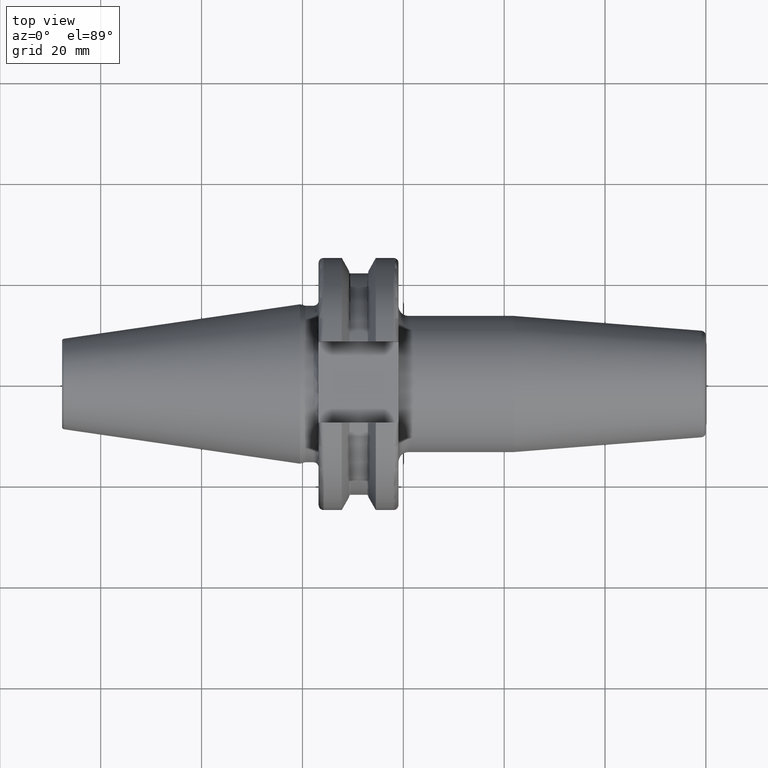
[diagram: clean part render]
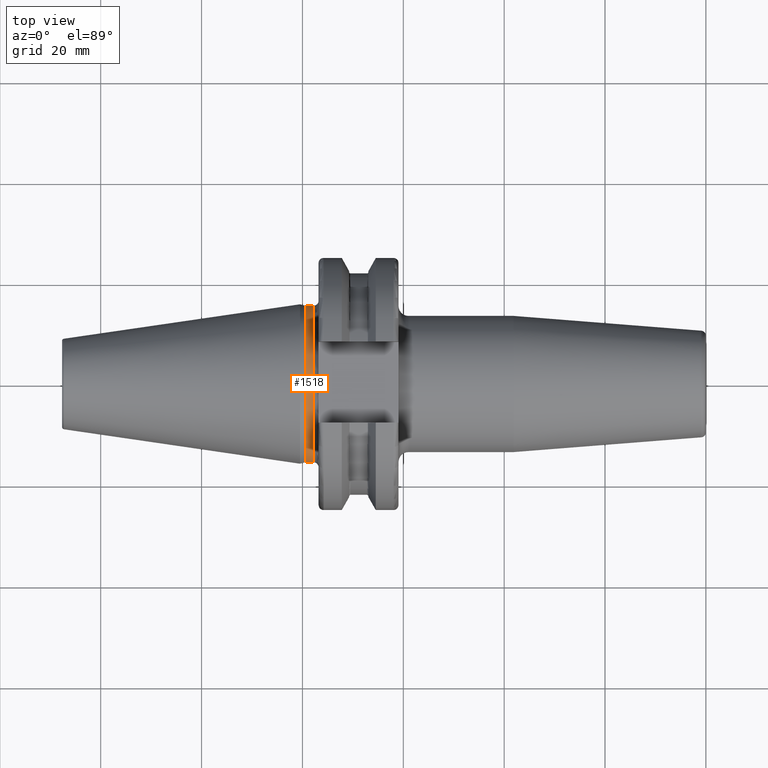
[diagram: same view with one face highlighted and labeled with its STEP entity id]
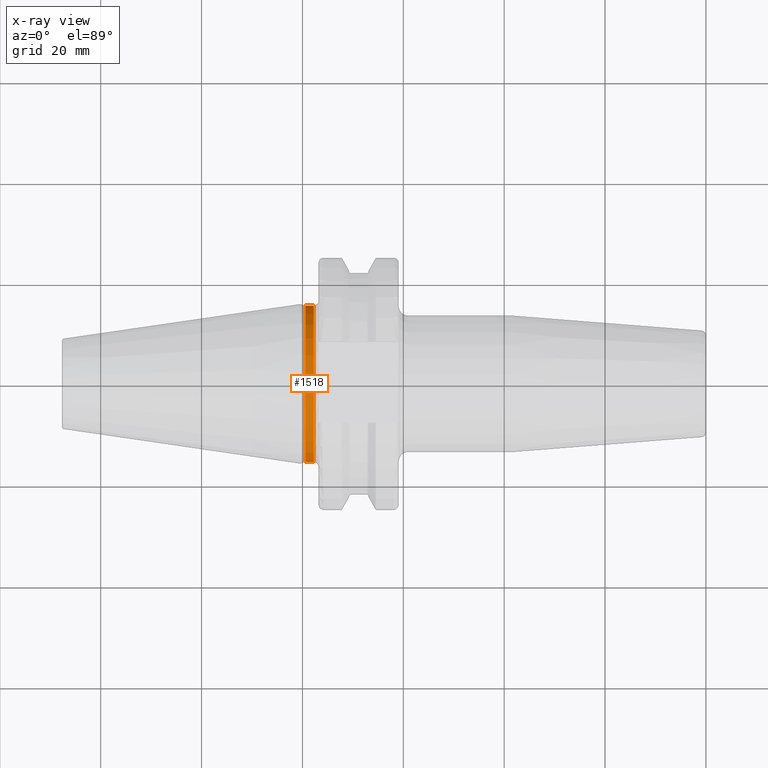
[diagram: x-ray of the same camera — body ghosted, the highlighted face saturated]
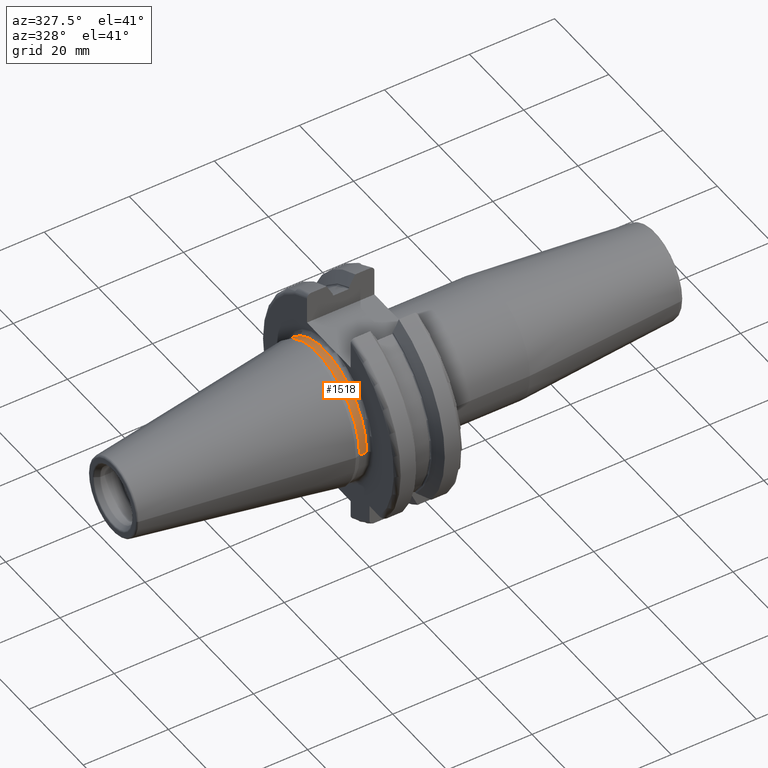
[diagram: same view with one face highlighted and labeled with its STEP entity id]
A machine part, top view. The second image highlights one B-rep face of the part: STEP entity #1518.
The next image is the same camera in x-ray: the body ghosted, the highlighted face saturated — about 0% of this face is hidden behind the body in this view.
A second angle (auxiliary view) of the same face is appended — the face is thin or edge-on in the first view.
In plain terms, the highlighted cylindrical surface (partial cylindrical patch) has radius 15.525 mm, axis along (1, 0, 0).
Its self-contained STEP definition (entity closure, byte-faithful):
#73=CARTESIAN_POINT('',(5.5E-1,0.E0,0.E0));
#74=DIRECTION('',(1.E0,0.E0,0.E0));
#75=DIRECTION('',(0.E0,1.E0,0.E0));
#76=AXIS2_PLACEMENT_3D('',#73,#74,#75);
#78=CARTESIAN_POINT('',(2.2E0,0.E0,0.E0));
#79=DIRECTION('',(1.E0,0.E0,0.E0));
#80=DIRECTION('',(0.E0,1.E0,0.E0));
#81=AXIS2_PLACEMENT_3D('',#78,#79,#80);
#83=DIRECTION('',(-1.E0,0.E0,0.E0));
#84=VECTOR('',#83,1.65E0);
#85=CARTESIAN_POINT('',(2.2E0,1.5525E1,0.E0));
#86=LINE('',#85,#84);
#87=DIRECTION('',(-1.E0,0.E0,0.E0));
#88=VECTOR('',#87,1.65E0);
#89=CARTESIAN_POINT('',(2.2E0,-1.5525E1,0.E0));
#90=LINE('',#89,#88);
#1161=CARTESIAN_POINT('',(2.2E0,1.5525E1,0.E0));
#1163=VERTEX_POINT('',#1161);
#1164=CARTESIAN_POINT('',(5.5E-1,1.5525E1,0.E0));
#1165=VERTEX_POINT('',#1164);
#1167=CARTESIAN_POINT('',(2.2E0,-1.5525E1,0.E0));
#1169=VERTEX_POINT('',#1167);
#1170=CARTESIAN_POINT('',(5.5E-1,-1.5525E1,0.E0));
#1171=VERTEX_POINT('',#1170);
#1504=CARTESIAN_POINT('',(-5.0985E1,0.E0,0.E0));
#1505=DIRECTION('',(1.E0,0.E0,0.E0));
#1506=DIRECTION('',(0.E0,-1.E0,0.E0));
#1507=AXIS2_PLACEMENT_3D('',#1504,#1505,#1506);
#1508=CYLINDRICAL_SURFACE('',#1507,1.5525E1);
#1510=ORIENTED_EDGE('',*,*,#1509,.F.);
#1512=ORIENTED_EDGE('',*,*,#1511,.T.);
#1514=ORIENTED_EDGE('',*,*,#1513,.T.);
#1515=ORIENTED_EDGE('',*,*,#1497,.F.);
#1516=EDGE_LOOP('',(#1510,#1512,#1514,#1515));
#1517=FACE_OUTER_BOUND('',#1516,.F.);
#1518=ADVANCED_FACE('',(#1517),#1508,.T.);
#77=CIRCLE('',#76,1.5525E1);
#82=CIRCLE('',#81,1.5525E1);
#1497=EDGE_CURVE('',#1165,#1171,#77,.T.);
#1509=EDGE_CURVE('',#1163,#1165,#86,.T.);
#1511=EDGE_CURVE('',#1163,#1169,#82,.T.);
#1513=EDGE_CURVE('',#1169,#1171,#90,.T.);